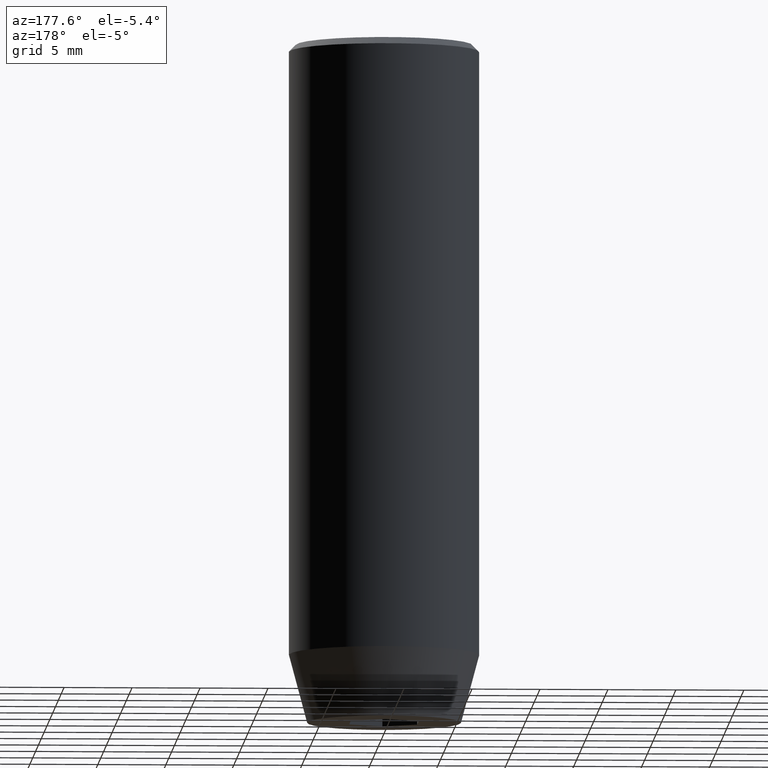
[diagram: clean part render]
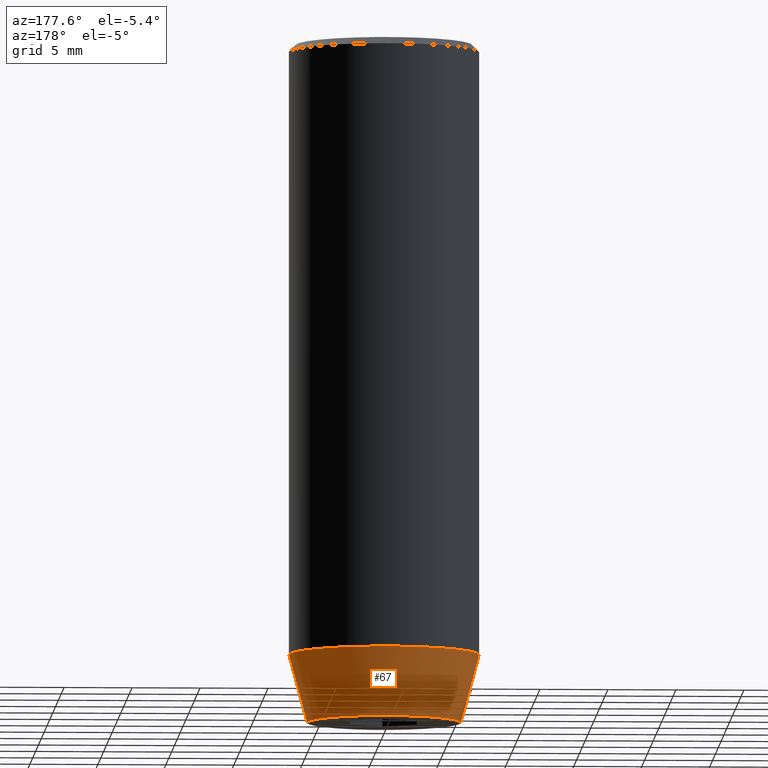
[diagram: same view with one face highlighted and labeled with its STEP entity id]
A machine part, auxiliary view. The second image highlights one B-rep face of the part: STEP entity #67.
In plain terms, the highlighted conical surface has half-angle 15 deg.
Its self-contained STEP definition (entity closure, byte-faithful):
#6 = CARTESIAN_POINT ( 'NONE',  ( 0.000000000000000000, 0.000000000000000000, -50.00000000000000000 ) ) ;
#9 = CARTESIAN_POINT ( 'NONE',  ( -5.660254037844384634, 7.752169791919240742E-16, -50.00000000000000000 ) ) ;
#35 = CARTESIAN_POINT ( 'NONE',  ( 7.000000000000000000, 0.000000000000000000, -45.00000000000000711 ) ) ;
#37 = DIRECTION ( 'NONE',  ( 1.000000000000000000, 0.000000000000000000, 0.000000000000000000 ) ) ;
#39 = VECTOR ( 'NONE', #394, 1000.000000000000114 ) ;
#59 = DIRECTION ( 'NONE',  ( 1.000000000000000000, 0.000000000000000000, 0.000000000000000000 ) ) ;
#67 = ADVANCED_FACE ( 'NONE', ( #577 ), #519, .T. ) ;
#76 = CARTESIAN_POINT ( 'NONE',  ( -7.000000000000000000, 8.572527594031473190E-16, -45.00000000000000711 ) ) ;
#90 = CIRCLE ( 'NONE', #423, 5.660254037844384634 ) ;
#148 = VERTEX_POINT ( 'NONE', #464 ) ;
#151 = DIRECTION ( 'NONE',  ( -0.2588190451025211836, 3.169619151431770488E-17, 0.9659258262890680902 ) ) ;
#165 = VERTEX_POINT ( 'NONE', #233 ) ;
#177 = ORIENTED_EDGE ( 'NONE', *, *, #345, .F. ) ;
#190 = EDGE_CURVE ( 'NONE', #165, #215, #90, .T. ) ;
#206 = CIRCLE ( 'NONE', #286, 7.000000000000000000 ) ;
#215 = VERTEX_POINT ( 'NONE', #9 ) ;
#228 = EDGE_CURVE ( 'NONE', #148, #384, #206, .T. ) ;
#232 = ORIENTED_EDGE ( 'NONE', *, *, #583, .T. ) ;
#233 = CARTESIAN_POINT ( 'NONE',  ( 5.660254037844384634, 0.000000000000000000, -50.00000000000000000 ) ) ;
#277 = AXIS2_PLACEMENT_3D ( 'NONE', #301, #486, #37 ) ;
#281 = DIRECTION ( 'NONE',  ( -0.000000000000000000, -0.000000000000000000, 1.000000000000000000 ) ) ;
#285 = CARTESIAN_POINT ( 'NONE',  ( 0.000000000000000000, 0.000000000000000000, -45.00000000000000711 ) ) ;
#286 = AXIS2_PLACEMENT_3D ( 'NONE', #285, #281, #59 ) ;
#301 = CARTESIAN_POINT ( 'NONE',  ( 0.000000000000000000, 0.000000000000000000, -45.00000000000000711 ) ) ;
#345 = EDGE_CURVE ( 'NONE', #165, #148, #430, .T. ) ;
#373 = ORIENTED_EDGE ( 'NONE', *, *, #190, .T. ) ;
#374 = DIRECTION ( 'NONE',  ( 1.000000000000000000, 0.000000000000000000, 0.000000000000000000 ) ) ;
#384 = VERTEX_POINT ( 'NONE', #440 ) ;
#394 = DIRECTION ( 'NONE',  ( 0.2588190451025211836, 0.000000000000000000, 0.9659258262890680902 ) ) ;
#423 = AXIS2_PLACEMENT_3D ( 'NONE', #6, #506, #374 ) ;
#429 = ORIENTED_EDGE ( 'NONE', *, *, #228, .F. ) ;
#430 = LINE ( 'NONE', #35, #39 ) ;
#438 = VECTOR ( 'NONE', #151, 1000.000000000000114 ) ;
#440 = CARTESIAN_POINT ( 'NONE',  ( -7.000000000000000000, 8.572527594031473190E-16, -45.00000000000000711 ) ) ;
#464 = CARTESIAN_POINT ( 'NONE',  ( 7.000000000000000000, 0.000000000000000000, -45.00000000000000711 ) ) ;
#482 = EDGE_LOOP ( 'NONE', ( #373, #232, #429, #177 ) ) ;
#486 = DIRECTION ( 'NONE',  ( -0.000000000000000000, -0.000000000000000000, 1.000000000000000000 ) ) ;
#506 = DIRECTION ( 'NONE',  ( -0.000000000000000000, -0.000000000000000000, 1.000000000000000000 ) ) ;
#519 = CONICAL_SURFACE ( 'NONE', #277, 7.000000000000000000, 0.2617993877991499074 ) ;
#562 = LINE ( 'NONE', #76, #438 ) ;
#577 = FACE_OUTER_BOUND ( 'NONE', #482, .T. ) ;
#583 = EDGE_CURVE ( 'NONE', #215, #384, #562, .T. ) ;